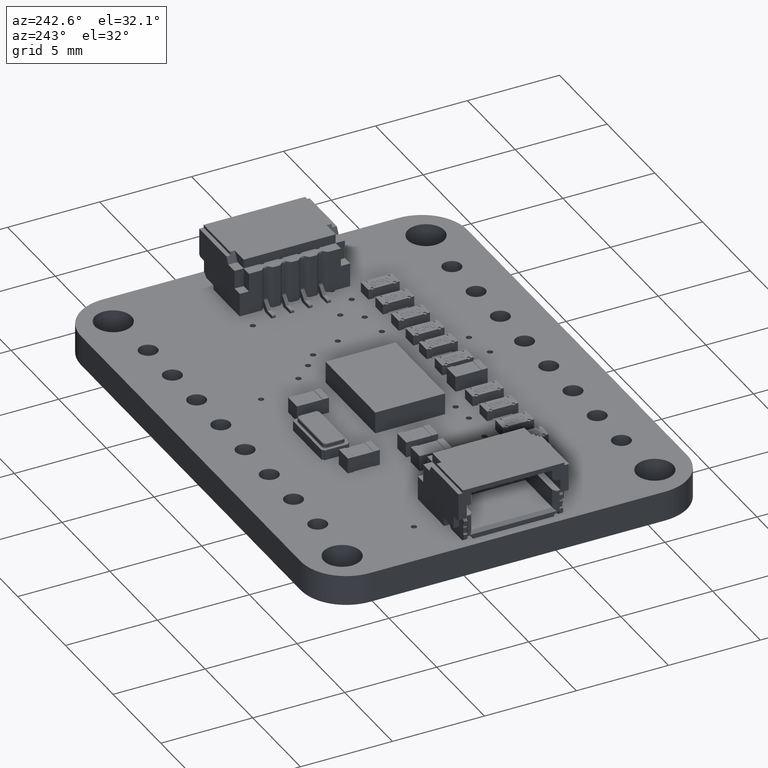
[diagram: clean part render]
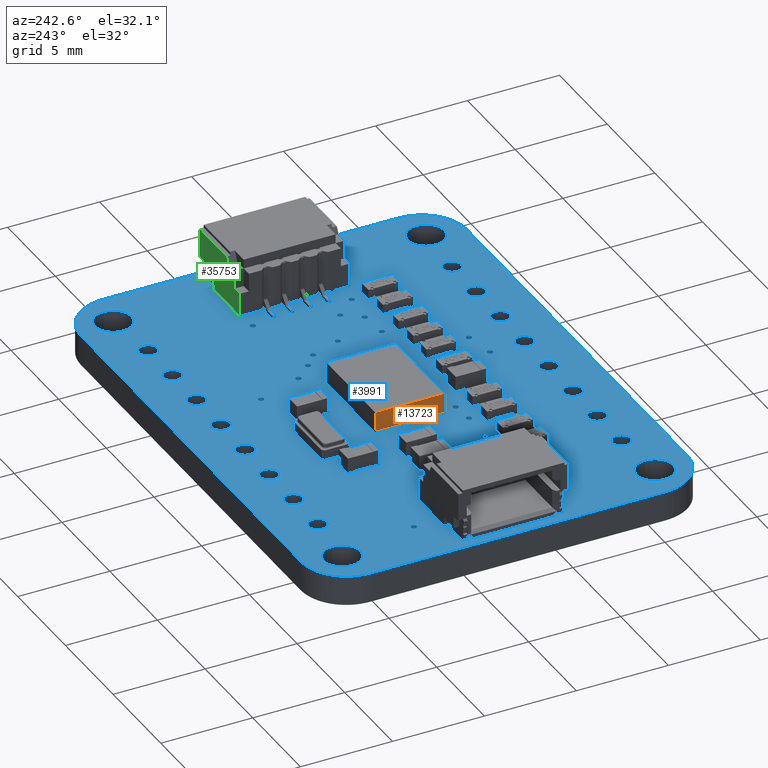
[diagram: same view with three faces highlighted in distinct colors, each labeled with its STEP entity id]
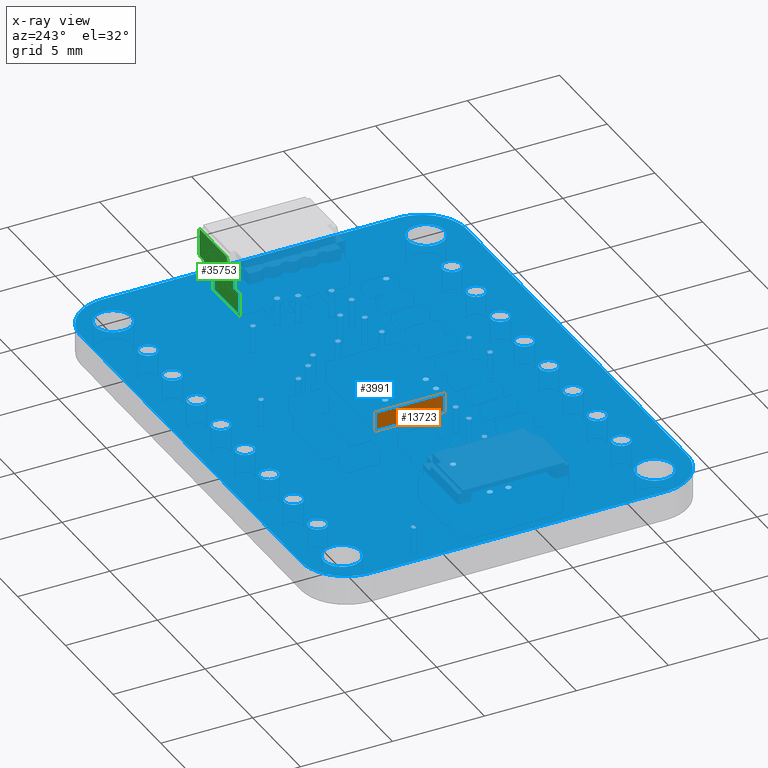
[diagram: x-ray of the same camera — body ghosted, the three highlighted faces saturated]
A machine part, auxiliary view with three faces highlighted in distinct colors.
The next image is the same camera in x-ray (body ghosted, the three faces saturated) — at least one of them is partly hidden behind the body in this view.
Their STEP definitions:

[orange] entity #13723 — the highlighted planar face has unit normal (1, 0, 0).
#13697 = VERTEX_POINT('',#13698);
#13698 = CARTESIAN_POINT('',(-2.6,0.13,-1.9));
#13704 = EDGE_CURVE('',#13705,#13697,#13707,.T.);
#13705 = VERTEX_POINT('',#13706);
#13706 = CARTESIAN_POINT('',(-2.6,1.18,-1.9));
#13707 = LINE('',#13708,#13709);
#13708 = CARTESIAN_POINT('',(-2.6,1.18,-1.9));
#13709 = VECTOR('',#13710,1.);
#13710 = DIRECTION('',(-0.,-1.,-0.));
#13723 = ADVANCED_FACE('',(#13724),#13749,.F.);
#13724 = FACE_BOUND('',#13725,.T.);
#13725 = EDGE_LOOP('',(#13726,#13734,#13742,#13748));
#13726 = ORIENTED_EDGE('',*,*,#13727,.F.);
#13727 = EDGE_CURVE('',#13728,#13697,#13730,.T.);
#13728 = VERTEX_POINT('',#13729);
#13729 = CARTESIAN_POINT('',(-2.6,0.13,1.9));
#13730 = LINE('',#13731,#13732);
#13731 = CARTESIAN_POINT('',(-2.6,0.13,1.9));
#13732 = VECTOR('',#13733,1.);
#13733 = DIRECTION('',(0.,0.,-1.));
#13734 = ORIENTED_EDGE('',*,*,#13735,.F.);
#13735 = EDGE_CURVE('',#13736,#13728,#13738,.T.);
#13736 = VERTEX_POINT('',#13737);
#13737 = CARTESIAN_POINT('',(-2.6,1.18,1.9));
#13738 = LINE('',#13739,#13740);
#13739 = CARTESIAN_POINT('',(-2.6,1.18,1.9));
#13740 = VECTOR('',#13741,1.);
#13741 = DIRECTION('',(-0.,-1.,-0.));
#13742 = ORIENTED_EDGE('',*,*,#13743,.F.);
#13743 = EDGE_CURVE('',#13705,#13736,#13744,.T.);
#13744 = LINE('',#13745,#13746);
#13745 = CARTESIAN_POINT('',(-2.6,1.18,1.9));
#13746 = VECTOR('',#13747,1.);
#13747 = DIRECTION('',(-0.,-0.,1.));
#13748 = ORIENTED_EDGE('',*,*,#13704,.T.);
#13749 = PLANE('',#13750);
#13750 = AXIS2_PLACEMENT_3D('',#13751,#13752,#13753);
#13751 = CARTESIAN_POINT('',(-2.6,1.18,1.9));
#13752 = DIRECTION('',(1.,-0.,0.));
#13753 = DIRECTION('',(0.,0.,-1.));

[blue] entity #3991 — the highlighted planar face has unit normal (0, 0, 1).
#122 = VERTEX_POINT('',#123);
#123 = CARTESIAN_POINT('',(26.5,-2.,0.82));
#129 = EDGE_CURVE('',#122,#130,#132,.T.);
#130 = VERTEX_POINT('',#131);
#131 = CARTESIAN_POINT('',(3.5,-2.,0.82));
#132 = LINE('',#133,#134);
#133 = CARTESIAN_POINT('',(26.5,-2.,0.82));
#134 = VECTOR('',#135,1.);
#135 = DIRECTION('',(-1.,0.,0.));
#162 = VERTEX_POINT('',#163);
#163 = CARTESIAN_POINT('',(26.75982,-2.01263,0.82));
#169 = EDGE_CURVE('',#162,#122,#170,.T.);
#170 = LINE('',#171,#172);
#171 = CARTESIAN_POINT('',(26.75982,-2.01263,0.82));
#172 = VECTOR('',#173,1.);
#173 = DIRECTION('',(-0.998820595701,4.855324503005E-02,0.));
#191 = EDGE_CURVE('',#130,#192,#194,.T.);
#192 = VERTEX_POINT('',#193);
#193 = CARTESIAN_POINT('',(3.24018,-2.01263,0.82));
#194 = LINE('',#195,#196);
#195 = CARTESIAN_POINT('',(3.5,-2.,0.82));
#196 = VECTOR('',#197,1.);
#197 = DIRECTION('',(-0.998820595701,-4.855324503005E-02,0.));
#224 = VERTEX_POINT('',#225);
#225 = CARTESIAN_POINT('',(27.01117,-2.04974,0.82));
#231 = EDGE_CURVE('',#224,#162,#232,.T.);
#232 = LINE('',#233,#234);
#233 = CARTESIAN_POINT('',(27.01117,-2.04974,0.82));
#234 = VECTOR('',#235,1.);
#235 = DIRECTION('',(-0.989275824391,0.146059382706,0.));
#253 = EDGE_CURVE('',#192,#254,#256,.T.);
#254 = VERTEX_POINT('',#255);
#255 = CARTESIAN_POINT('',(2.98883,-2.04974,0.82));
#256 = LINE('',#257,#258);
#257 = CARTESIAN_POINT('',(3.24018,-2.01263,0.82));
#258 = VECTOR('',#259,1.);
#259 = DIRECTION('',(-0.989275824391,-0.146059382706,0.));
#286 = VERTEX_POINT('',#287);
#287 = CARTESIAN_POINT('',(27.25291,-2.11021,0.82));
#293 = EDGE_CURVE('',#286,#224,#294,.T.);
#294 = LINE('',#295,#296);
#295 = CARTESIAN_POINT('',(27.25291,-2.11021,0.82));
#296 = VECTOR('',#297,1.);
#297 = DIRECTION('',(-0.970109442671,0.242667816656,0.));
#315 = EDGE_CURVE('',#254,#316,#318,.T.);
#316 = VERTEX_POINT('',#317);
#317 = CARTESIAN_POINT('',(2.74709,-2.11021,0.82));
#318 = LINE('',#319,#320);
#319 = CARTESIAN_POINT('',(2.98883,-2.04974,0.82));
#320 = VECTOR('',#321,1.);
#321 = DIRECTION('',(-0.970109442671,-0.242667816656,0.));
#348 = VERTEX_POINT('',#349);
#349 = CARTESIAN_POINT('',(27.48389,-2.19287,0.82));
#355 = EDGE_CURVE('',#348,#286,#356,.T.);
#356 = LINE('',#357,#358);
#357 = CARTESIAN_POINT('',(27.48389,-2.19287,0.82));
#358 = VECTOR('',#359,1.);
#359 = DIRECTION('',(-0.941525917724,0.336940567837,0.));
#377 = EDGE_CURVE('',#316,#378,#380,.T.);
#378 = VERTEX_POINT('',#379);
#379 = CARTESIAN_POINT('',(2.51611,-2.19287,0.82));
#380 = LINE('',#381,#382);
#381 = CARTESIAN_POINT('',(2.74709,-2.11021,0.82));
#382 = VECTOR('',#383,1.);
#383 = DIRECTION('',(-0.941525917724,-0.336940567837,0.));
#410 = VERTEX_POINT('',#411);
#411 = CARTESIAN_POINT('',(27.70297,-2.29659,0.82));
#417 = EDGE_CURVE('',#410,#348,#418,.T.);
#418 = LINE('',#419,#420);
#419 = CARTESIAN_POINT('',(27.70297,-2.29659,0.82));
#420 = VECTOR('',#421,1.);
#421 = DIRECTION('',(-0.903825184632,0.427901899534,0.));
#439 = EDGE_CURVE('',#378,#440,#442,.T.);
#440 = VERTEX_POINT('',#441);
#441 = CARTESIAN_POINT('',(2.29703,-2.29659,0.82));
#442 = LINE('',#443,#444);
#443 = CARTESIAN_POINT('',(2.51611,-2.19287,0.82));
#444 = VECTOR('',#445,1.);
#445 = DIRECTION('',(-0.903825184632,-0.427901899534,0.));
#472 = VERTEX_POINT('',#473);
#473 = CARTESIAN_POINT('',(27.909,-2.42023,0.82));
#479 = EDGE_CURVE('',#472,#410,#480,.T.);
#480 = LINE('',#481,#482);
#481 = CARTESIAN_POINT('',(27.909,-2.42023,0.82));
#482 = VECTOR('',#483,1.);
#483 = DIRECTION('',(-0.857452529276,0.514563076832,0.));
#501 = EDGE_CURVE('',#440,#502,#504,.T.);
#502 = VERTEX_POINT('',#503);
#503 = CARTESIAN_POINT('',(2.091,-2.42023,0.82));
#504 = LINE('',#505,#506);
#505 = CARTESIAN_POINT('',(2.29703,-2.29659,0.82));
#506 = VECTOR('',#507,1.);
#507 = DIRECTION('',(-0.857452529276,-0.514563076832,0.));
#534 = VERTEX_POINT('',#535);
#535 = CARTESIAN_POINT('',(28.10084,-2.56263,0.82));
#541 = EDGE_CURVE('',#534,#472,#542,.T.);
#542 = LINE('',#543,#544);
#543 = CARTESIAN_POINT('',(28.10084,-2.56263,0.82));
#544 = VECTOR('',#545,1.);
#545 = DIRECTION('',(-0.802963619462,0.596028041136,0.));
#563 = EDGE_CURVE('',#502,#564,#566,.T.);
#564 = VERTEX_POINT('',#565);
#565 = CARTESIAN_POINT('',(1.89916,-2.56263,0.82));
#566 = LINE('',#567,#568);
#567 = CARTESIAN_POINT('',(2.091,-2.42023,0.82));
#568 = VECTOR('',#569,1.);
#569 = DIRECTION('',(-0.802963619462,-0.596028041136,0.));
#596 = VERTEX_POINT('',#597);
#597 = CARTESIAN_POINT('',(28.27734,-2.72266,0.82));
#603 = EDGE_CURVE('',#596,#534,#604,.T.);
#604 = LINE('',#605,#606);
#605 = CARTESIAN_POINT('',(28.27734,-2.72266,0.82));
#606 = VECTOR('',#607,1.);
#607 = DIRECTION('',(-0.740826374458,0.671696570564,0.));
#625 = EDGE_CURVE('',#564,#626,#628,.T.);
#626 = VERTEX_POINT('',#627);
#627 = CARTESIAN_POINT('',(1.72266,-2.72266,0.82));
#628 = LINE('',#629,#630);
#629 = CARTESIAN_POINT('',(1.89916,-2.56263,0.82));
#630 = VECTOR('',#631,1.);
#631 = DIRECTION('',(-0.740826374458,-0.671696570564,0.));
#658 = VERTEX_POINT('',#659);
#659 = CARTESIAN_POINT('',(28.43737,-2.89916,0.82));
#665 = EDGE_CURVE('',#658,#596,#666,.T.);
#666 = LINE('',#667,#668);
#667 = CARTESIAN_POINT('',(28.43737,-2.89916,0.82));
#668 = VECTOR('',#669,1.);
#669 = DIRECTION('',(-0.671696570564,0.740826374458,0.));
#687 = EDGE_CURVE('',#626,#688,#690,.T.);
#688 = VERTEX_POINT('',#689);
#689 = CARTESIAN_POINT('',(1.56263,-2.89916,0.82));
#690 = LINE('',#691,#692);
#691 = CARTESIAN_POINT('',(1.72266,-2.72266,0.82));
#692 = VECTOR('',#693,1.);
#693 = DIRECTION('',(-0.671696570564,-0.740826374458,0.));
#720 = VERTEX_POINT('',#721);
#721 = CARTESIAN_POINT('',(28.57977,-3.091,0.82));
#727 = EDGE_CURVE('',#720,#658,#728,.T.);
#728 = LINE('',#729,#730);
#729 = CARTESIAN_POINT('',(28.57977,-3.091,0.82));
#730 = VECTOR('',#731,1.);
#731 = DIRECTION('',(-0.596028041136,0.802963619462,0.));
#749 = EDGE_CURVE('',#688,#750,#752,.T.);
#750 = VERTEX_POINT('',#751);
#751 = CARTESIAN_POINT('',(1.42023,-3.091,0.82));
#752 = LINE('',#753,#754);
#753 = CARTESIAN_POINT('',(1.56263,-2.89916,0.82));
#754 = VECTOR('',#755,1.);
#755 = DIRECTION('',(-0.596028041136,-0.802963619462,0.));
#782 = VERTEX_POINT('',#783);
#783 = CARTESIAN_POINT('',(28.70341,-3.29704,0.82));
#789 = EDGE_CURVE('',#782,#720,#790,.T.);
#790 = LINE('',#791,#792);
#791 = CARTESIAN_POINT('',(28.70341,-3.29704,0.82));
#792 = VECTOR('',#793,1.);
#793 = DIRECTION('',(-0.514544715016,0.857463548058,0.));
#811 = EDGE_CURVE('',#750,#812,#814,.T.);
#812 = VERTEX_POINT('',#813);
#813 = CARTESIAN_POINT('',(1.29659,-3.29704,0.82));
#814 = LINE('',#815,#816);
#815 = CARTESIAN_POINT('',(1.42023,-3.091,0.82));
#816 = VECTOR('',#817,1.);
#817 = DIRECTION('',(-0.514544715016,-0.857463548058,0.));
#844 = VERTEX_POINT('',#845);
#845 = CARTESIAN_POINT('',(28.80713,-3.51611,0.82));
#851 = EDGE_CURVE('',#844,#782,#852,.T.);
#852 = LINE('',#853,#854);
#853 = CARTESIAN_POINT('',(28.80713,-3.51611,0.82));
#854 = VECTOR('',#855,1.);
#855 = DIRECTION('',(-0.427917855561,0.903817630328,0.));
#873 = EDGE_CURVE('',#812,#874,#876,.T.);
#874 = VERTEX_POINT('',#875);
#875 = CARTESIAN_POINT('',(1.19287,-3.51611,0.82));
#876 = LINE('',#877,#878);
#877 = CARTESIAN_POINT('',(1.29659,-3.29704,0.82));
#878 = VECTOR('',#879,1.);
#879 = DIRECTION('',(-0.427917855561,-0.903817630328,0.));
#906 = VERTEX_POINT('',#907);
#907 = CARTESIAN_POINT('',(28.88979,-3.74709,0.82));
#913 = EDGE_CURVE('',#906,#844,#914,.T.);
#914 = LINE('',#915,#916);
#915 = CARTESIAN_POINT('',(28.88979,-3.74709,0.82));
#916 = VECTOR('',#917,1.);
#917 = DIRECTION('',(-0.336940567837,0.941525917724,0.));
#935 = EDGE_CURVE('',#874,#936,#938,.T.);
#936 = VERTEX_POINT('',#937);
#937 = CARTESIAN_POINT('',(1.11021,-3.74709,0.82));
#938 = LINE('',#939,#940);
#939 = CARTESIAN_POINT('',(1.19287,-3.51611,0.82));
#940 = VECTOR('',#941,1.);
#941 = DIRECTION('',(-0.336940567837,-0.941525917724,0.));
#968 = VERTEX_POINT('',#969);
#969 = CARTESIAN_POINT('',(28.95026,-3.98883,0.82));
#975 = EDGE_CURVE('',#968,#906,#976,.T.);
#976 = LINE('',#977,#978);
#977 = CARTESIAN_POINT('',(28.95026,-3.98883,0.82));
#978 = VECTOR('',#979,1.);
#979 = DIRECTION('',(-0.242667816656,0.970109442671,0.));
#997 = EDGE_CURVE('',#936,#998,#1000,.T.);
#998 = VERTEX_POINT('',#999);
#999 = CARTESIAN_POINT('',(1.04974,-3.98883,0.82));
#1000 = LINE('',#1001,#1002);
#1001 = CARTESIAN_POINT('',(1.11021,-3.74709,0.82));
#1002 = VECTOR('',#1003,1.);
#1003 = DIRECTION('',(-0.242667816656,-0.970109442671,0.));
#1030 = VERTEX_POINT('',#1031);
#1031 = CARTESIAN_POINT('',(28.98737,-4.24018,0.82));
#1037 = EDGE_CURVE('',#1030,#968,#1038,.T.);
#1038 = LINE('',#1039,#1040);
#1039 = CARTESIAN_POINT('',(28.98737,-4.24018,0.82));
#1040 = VECTOR('',#1041,1.);
#1041 = DIRECTION('',(-0.146059382706,0.989275824391,0.));
#1059 = EDGE_CURVE('',#998,#1060,#1062,.T.);
#1060 = VERTEX_POINT('',#1061);
#1061 = CARTESIAN_POINT('',(1.01263,-4.24018,0.82));
#1062 = LINE('',#1063,#1064);
#1063 = CARTESIAN_POINT('',(1.04974,-3.98883,0.82));
#1064 = VECTOR('',#1065,1.);
#1065 = DIRECTION('',(-0.146059382706,-0.989275824391,0.));
#1092 = VERTEX_POINT('',#1093);
#1093 = CARTESIAN_POINT('',(29.,-4.5,0.82));
#1099 = EDGE_CURVE('',#1092,#1030,#1100,.T.);
#1100 = LINE('',#1101,#1102);
#1101 = CARTESIAN_POINT('',(29.,-4.5,0.82));
#1102 = VECTOR('',#1103,1.);
#1103 = DIRECTION('',(-4.855324503005E-02,0.998820595701,0.));
#1121 = EDGE_CURVE('',#1060,#1122,#1124,.T.);
#1122 = VERTEX_POINT('',#1123);
#1123 = CARTESIAN_POINT('',(1.,-4.5,0.82));
#1124 = LINE('',#1125,#1126);
#1125 = CARTESIAN_POINT('',(1.01263,-4.24018,0.82));
#1126 = VECTOR('',#1127,1.);
#1127 = DIRECTION('',(-4.855324503005E-02,-0.998820595701,0.));
#1154 = VERTEX_POINT('',#1155);
#1155 = CARTESIAN_POINT('',(29.,-20.5,0.82));
#1161 = EDGE_CURVE('',#1154,#1092,#1162,.T.);
#1162 = LINE('',#1163,#1164);
#1163 = CARTESIAN_POINT('',(29.,-20.5,0.82));
#1164 = VECTOR('',#1165,1.);
#1165 = DIRECTION('',(0.,1.,0.));
#1183 = EDGE_CURVE('',#1122,#1184,#1186,.T.);
#1184 = VERTEX_POINT('',#1185);
#1185 = CARTESIAN_POINT('',(1.,-20.5,0.82));
#1186 = LINE('',#1187,#1188);
#1187 = CARTESIAN_POINT('',(1.,-4.5,0.82));
#1188 = VECTOR('',#1189,1.);
#1189 = DIRECTION('',(0.,-1.,0.));
#1216 = VERTEX_POINT('',#1217);
#1217 = CARTESIAN_POINT('',(28.98737,-20.75982,0.82));
#1223 = EDGE_CURVE('',#1216,#1154,#1224,.T.);
#1224 = LINE('',#1225,#1226);
#1225 = CARTESIAN_POINT('',(28.98737,-20.75982,0.82));
#1226 = VECTOR('',#1227,1.);
#1227 = DIRECTION('',(4.855324503005E-02,0.998820595701,0.));
#1245 = EDGE_CURVE('',#1184,#1246,#1248,.T.);
#1246 = VERTEX_POINT('',#1247);
#1247 = CARTESIAN_POINT('',(1.01263,-20.75982,0.82));
#1248 = LINE('',#1249,#1250);
#1249 = CARTESIAN_POINT('',(1.,-20.5,0.82));
#1250 = VECTOR('',#1251,1.);
#1251 = DIRECTION('',(4.855324503005E-02,-0.998820595701,0.));
#1278 = VERTEX_POINT('',#1279);
#1279 = CARTESIAN_POINT('',(28.95026,-21.01117,0.82));
#1285 = EDGE_CURVE('',#1278,#1216,#1286,.T.);
#1286 = LINE('',#1287,#1288);
#1287 = CARTESIAN_POINT('',(28.95026,-21.01117,0.82));
#1288 = VECTOR('',#1289,1.);
#1289 = DIRECTION('',(0.146059382706,0.989275824391,0.));
#1307 = EDGE_CURVE('',#1246,#1308,#1310,.T.);
#1308 = VERTEX_POINT('',#1309);
#1309 = CARTESIAN_POINT('',(1.04974,-21.01117,0.82));
#1310 = LINE('',#1311,#1312);
#1311 = CARTESIAN_POINT('',(1.01263,-20.75982,0.82));
#1312 = VECTOR('',#1313,1.);
#1313 = DIRECTION('',(0.146059382706,-0.989275824391,0.));
#1340 = VERTEX_POINT('',#1341);
#1341 = CARTESIAN_POINT('',(28.88979,-21.25291,0.82));
#1347 = EDGE_CURVE('',#1340,#1278,#1348,.T.);
#1348 = LINE('',#1349,#1350);
#1349 = CARTESIAN_POINT('',(28.88979,-21.25291,0.82));
#1350 = VECTOR('',#1351,1.);
#1351 = DIRECTION('',(0.242667816656,0.970109442671,0.));
#1369 = EDGE_CURVE('',#1308,#1370,#1372,.T.);
#1370 = VERTEX_POINT('',#1371);
#1371 = CARTESIAN_POINT('',(1.11021,-21.25291,0.82));
#1372 = LINE('',#1373,#1374);
#1373 = CARTESIAN_POINT('',(1.04974,-21.01117,0.82));
#1374 = VECTOR('',#1375,1.);
#1375 = DIRECTION('',(0.242667816656,-0.970109442671,0.));
#1402 = VERTEX_POINT('',#1403);
#1403 = CARTESIAN_POINT('',(28.80713,-21.48389,0.82));
#1409 = EDGE_CURVE('',#1402,#1340,#1410,.T.);
#1410 = LINE('',#1411,#1412);
#1411 = CARTESIAN_POINT('',(28.80713,-21.48389,0.82));
#1412 = VECTOR('',#1413,1.);
#1413 = DIRECTION('',(0.336940567837,0.941525917724,0.));
#1431 = EDGE_CURVE('',#1370,#1432,#1434,.T.);
#1432 = VERTEX_POINT('',#1433);
#1433 = CARTESIAN_POINT('',(1.19287,-21.48389,0.82));
#1434 = LINE('',#1435,#1436);
#1435 = CARTESIAN_POINT('',(1.11021,-21.25291,0.82));
#1436 = VECTOR('',#1437,1.);
#1437 = DIRECTION('',(0.336940567837,-0.941525917724,0.));
#1464 = VERTEX_POINT('',#1465);
#1465 = CARTESIAN_POINT('',(28.70341,-21.70296,0.82));
#1471 = EDGE_CURVE('',#1464,#1402,#1472,.T.);
#1472 = LINE('',#1473,#1474);
#1473 = CARTESIAN_POINT('',(28.70341,-21.70296,0.82));
#1474 = VECTOR('',#1475,1.);
#1475 = DIRECTION('',(0.427917855561,0.903817630328,0.));
#1493 = EDGE_CURVE('',#1432,#1494,#1496,.T.);
#1494 = VERTEX_POINT('',#1495);
#1495 = CARTESIAN_POINT('',(1.29659,-21.70296,0.82));
#1496 = LINE('',#1497,#1498);
#1497 = CARTESIAN_POINT('',(1.19287,-21.48389,0.82));
#1498 = VECTOR('',#1499,1.);
#1499 = DIRECTION('',(0.427917855561,-0.903817630328,0.));
#1526 = VERTEX_POINT('',#1527);
#1527 = CARTESIAN_POINT('',(28.57977,-21.909,0.82));
#1533 = EDGE_CURVE('',#1526,#1464,#1534,.T.);
#1534 = LINE('',#1535,#1536);
#1535 = CARTESIAN_POINT('',(28.57977,-21.909,0.82));
#1536 = VECTOR('',#1537,1.);
#1537 = DIRECTION('',(0.514544715016,0.857463548058,0.));
#1555 = EDGE_CURVE('',#1494,#1556,#1558,.T.);
#1556 = VERTEX_POINT('',#1557);
#1557 = CARTESIAN_POINT('',(1.42023,-21.909,0.82));
#1558 = LINE('',#1559,#1560);
#1559 = CARTESIAN_POINT('',(1.29659,-21.70296,0.82));
#1560 = VECTOR('',#1561,1.);
#1561 = DIRECTION('',(0.514544715016,-0.857463548058,0.));
#1588 = VERTEX_POINT('',#1589);
#1589 = CARTESIAN_POINT('',(28.43737,-22.10084,0.82));
#1595 = EDGE_CURVE('',#1588,#1526,#1596,.T.);
#1596 = LINE('',#1597,#1598);
#1597 = CARTESIAN_POINT('',(28.43737,-22.10084,0.82));
#1598 = VECTOR('',#1599,1.);
#1599 = DIRECTION('',(0.596028041136,0.802963619462,0.));
#1617 = EDGE_CURVE('',#1556,#1618,#1620,.T.);
#1618 = VERTEX_POINT('',#1619);
#1619 = CARTESIAN_POINT('',(1.56263,-22.10084,0.82));
#1620 = LINE('',#1621,#1622);
#1621 = CARTESIAN_POINT('',(1.42023,-21.909,0.82));
#1622 = VECTOR('',#1623,1.);
#1623 = DIRECTION('',(0.596028041136,-0.802963619462,0.));
#1650 = VERTEX_POINT('',#1651);
#1651 = CARTESIAN_POINT('',(28.27734,-22.27734,0.82));
#1657 = EDGE_CURVE('',#1650,#1588,#1658,.T.);
#1658 = LINE('',#1659,#1660);
#1659 = CARTESIAN_POINT('',(28.27734,-22.27734,0.82));
#1660 = VECTOR('',#1661,1.);
#1661 = DIRECTION('',(0.671696570564,0.740826374458,0.));
#1679 = EDGE_CURVE('',#1618,#1680,#1682,.T.);
#1680 = VERTEX_POINT('',#1681);
#1681 = CARTESIAN_POINT('',(1.72266,-22.27734,0.82));
#1682 = LINE('',#1683,#1684);
#1683 = CARTESIAN_POINT('',(1.56263,-22.10084,0.82));
#1684 = VECTOR('',#1685,1.);
#1685 = DIRECTION('',(0.671696570564,-0.740826374458,0.));
#1712 = VERTEX_POINT('',#1713);
#1713 = CARTESIAN_POINT('',(28.10084,-22.43737,0.82));
#1719 = EDGE_CURVE('',#1712,#1650,#1720,.T.);
#1720 = LINE('',#1721,#1722);
#1721 = CARTESIAN_POINT('',(28.10084,-22.43737,0.82));
#1722 = VECTOR('',#1723,1.);
#1723 = DIRECTION('',(0.740826374458,0.671696570564,0.));
#1741 = EDGE_CURVE('',#1680,#1742,#1744,.T.);
#1742 = VERTEX_POINT('',#1743);
#1743 = CARTESIAN_POINT('',(1.89916,-22.43737,0.82));
#1744 = LINE('',#1745,#1746);
#1745 = CARTESIAN_POINT('',(1.72266,-22.27734,0.82));
#1746 = VECTOR('',#1747,1.);
#1747 = DIRECTION('',(0.740826374458,-0.671696570564,0.));
#1774 = VERTEX_POINT('',#1775);
#1775 = CARTESIAN_POINT('',(27.909,-22.57977,0.82));
#1781 = EDGE_CURVE('',#1774,#1712,#1782,.T.);
#1782 = LINE('',#1783,#1784);
#1783 = CARTESIAN_POINT('',(27.909,-22.57977,0.82));
#1784 = VECTOR('',#1785,1.);
#1785 = DIRECTION('',(0.802963619462,0.596028041136,0.));
#1803 = EDGE_CURVE('',#1742,#1804,#1806,.T.);
#1804 = VERTEX_POINT('',#1805);
#1805 = CARTESIAN_POINT('',(2.091,-22.57977,0.82));
#1806 = LINE('',#1807,#1808);
#1807 = CARTESIAN_POINT('',(1.89916,-22.43737,0.82));
#1808 = VECTOR('',#1809,1.);
#1809 = DIRECTION('',(0.802963619462,-0.596028041136,0.));
#1836 = VERTEX_POINT('',#1837);
#1837 = CARTESIAN_POINT('',(27.70297,-22.70341,0.82));
#1843 = EDGE_CURVE('',#1836,#1774,#1844,.T.);
#1844 = LINE('',#1845,#1846);
#1845 = CARTESIAN_POINT('',(27.70297,-22.70341,0.82));
#1846 = VECTOR('',#1847,1.);
#1847 = DIRECTION('',(0.857452529276,0.514563076832,0.));
#1865 = EDGE_CURVE('',#1804,#1866,#1868,.T.);
#1866 = VERTEX_POINT('',#1867);
#1867 = CARTESIAN_POINT('',(2.29703,-22.70341,0.82));
#1868 = LINE('',#1869,#1870);
#1869 = CARTESIAN_POINT('',(2.091,-22.57977,0.82));
#1870 = VECTOR('',#1871,1.);
#1871 = DIRECTION('',(0.857452529276,-0.514563076832,0.));
#1898 = VERTEX_POINT('',#1899);
#1899 = CARTESIAN_POINT('',(27.48389,-22.80713,0.82));
#1905 = EDGE_CURVE('',#1898,#1836,#1906,.T.);
#1906 = LINE('',#1907,#1908);
#1907 = CARTESIAN_POINT('',(27.48389,-22.80713,0.82));
#1908 = VECTOR('',#1909,1.);
#1909 = DIRECTION('',(0.903825184632,0.427901899534,0.));
#1927 = EDGE_CURVE('',#1866,#1928,#1930,.T.);
#1928 = VERTEX_POINT('',#1929);
#1929 = CARTESIAN_POINT('',(2.51611,-22.80713,0.82));
#1930 = LINE('',#1931,#1932);
#1931 = CARTESIAN_POINT('',(2.29703,-22.70341,0.82));
#1932 = VECTOR('',#1933,1.);
#1933 = DIRECTION('',(0.903825184632,-0.427901899534,0.));
#1960 = VERTEX_POINT('',#1961);
#1961 = CARTESIAN_POINT('',(27.25291,-22.88979,0.82));
#1967 = EDGE_CURVE('',#1960,#1898,#1968,.T.);
#1968 = LINE('',#1969,#1970);
#1969 = CARTESIAN_POINT('',(27.25291,-22.88979,0.82));
#1970 = VECTOR('',#1971,1.);
#1971 = DIRECTION('',(0.941525917724,0.336940567837,0.));
#1989 = EDGE_CURVE('',#1928,#1990,#1992,.T.);
#1990 = VERTEX_POINT('',#1991);
#1991 = CARTESIAN_POINT('',(2.74709,-22.88979,0.82));
#1992 = LINE('',#1993,#1994);
#1993 = CARTESIAN_POINT('',(2.51611,-22.80713,0.82));
#1994 = VECTOR('',#1995,1.);
#1995 = DIRECTION('',(0.941525917724,-0.336940567837,0.));
#2022 = VERTEX_POINT('',#2023);
#2023 = CARTESIAN_POINT('',(27.01117,-22.95026,0.82));
#2029 = EDGE_CURVE('',#2022,#1960,#2030,.T.);
#2030 = LINE('',#2031,#2032);
#2031 = CARTESIAN_POINT('',(27.01117,-22.95026,0.82));
#2032 = VECTOR('',#2033,1.);
#2033 = DIRECTION('',(0.970109442671,0.242667816656,0.));
#2051 = EDGE_CURVE('',#1990,#2052,#2054,.T.);
#2052 = VERTEX_POINT('',#2053);
#2053 = CARTESIAN_POINT('',(2.98883,-22.95026,0.82));
#2054 = LINE('',#2055,#2056);
#2055 = CARTESIAN_POINT('',(2.74709,-22.88979,0.82));
#2056 = VECTOR('',#2057,1.);
#2057 = DIRECTION('',(0.970109442671,-0.242667816656,0.));
#2084 = VERTEX_POINT('',#2085);
#2085 = CARTESIAN_POINT('',(26.75982,-22.98737,0.82));
#2091 = EDGE_CURVE('',#2084,#2022,#2092,.T.);
#2092 = LINE('',#2093,#2094);
#2093 = CARTESIAN_POINT('',(26.75982,-22.98737,0.82));
#2094 = VECTOR('',#2095,1.);
#2095 = DIRECTION('',(0.989275824391,0.146059382706,0.));
#2113 = EDGE_CURVE('',#2052,#2114,#2116,.T.);
#2114 = VERTEX_POINT('',#2115);
#2115 = CARTESIAN_POINT('',(3.24018,-22.98737,0.82));
#2116 = LINE('',#2117,#2118);
#2117 = CARTESIAN_POINT('',(2.98883,-22.95026,0.82));
#2118 = VECTOR('',#2119,1.);
#2119 = DIRECTION('',(0.989275824391,-0.146059382706,0.));
#2146 = VERTEX_POINT('',#2147);
#2147 = CARTESIAN_POINT('',(26.5,-23.,0.82));
#2153 = EDGE_CURVE('',#2146,#2084,#2154,.T.);
#2154 = LINE('',#2155,#2156);
#2155 = CARTESIAN_POINT('',(26.5,-23.,0.82));
#2156 = VECTOR('',#2157,1.);
#2157 = DIRECTION('',(0.998820595701,4.855324503005E-02,0.));
#2175 = EDGE_CURVE('',#2114,#2176,#2178,.T.);
#2176 = VERTEX_POINT('',#2177);
#2177 = CARTESIAN_POINT('',(3.5,-23.,0.82));
#2178 = LINE('',#2179,#2180);
#2179 = CARTESIAN_POINT('',(3.24018,-22.98737,0.82));
#2180 = VECTOR('',#2181,1.);
#2181 = DIRECTION('',(0.998820595701,-4.855324503005E-02,0.));
#2206 = EDGE_CURVE('',#2176,#2146,#2207,.T.);
#2207 = LINE('',#2208,#2209);
#2208 = CARTESIAN_POINT('',(3.5,-23.,0.82));
#2209 = VECTOR('',#2210,1.);
#2210 = DIRECTION('',(1.,0.,0.));
#2230 = VERTEX_POINT('',#2231);
#2231 = CARTESIAN_POINT('',(4.,-21.,0.82));
#2237 = EDGE_CURVE('',#2230,#2230,#2238,.T.);
#2238 = CIRCLE('',#2239,1.);
#2239 = AXIS2_PLACEMENT_3D('',#2240,#2241,#2242);
#2240 = CARTESIAN_POINT('',(3.,-21.,0.82));
#2241 = DIRECTION('',(0.,0.,1.));
#2242 = DIRECTION('',(1.,0.,-0.));
#2263 = VERTEX_POINT('',#2264);
#2264 = CARTESIAN_POINT('',(6.618,-20.796,0.82));
#2270 = EDGE_CURVE('',#2263,#2263,#2271,.T.);
#2271 = CIRCLE('',#2272,0.508);
#2272 = AXIS2_PLACEMENT_3D('',#2273,#2274,#2275);
#2273 = CARTESIAN_POINT('',(6.11,-20.796,0.82));
#2274 = DIRECTION('',(0.,0.,1.));
#2275 = DIRECTION('',(1.,0.,-0.));
#2296 = VERTEX_POINT('',#2297);
#2297 = CARTESIAN_POINT('',(9.158,-20.796,0.82));
#2303 = EDGE_CURVE('',#2296,#2296,#2304,.T.);
#2304 = CIRCLE('',#2305,0.508);
#2305 = AXIS2_PLACEMENT_3D('',#2306,#2307,#2308);
#2306 = CARTESIAN_POINT('',(8.65,-20.796,0.82));
#2307 = DIRECTION('',(0.,0.,1.));
#2308 = DIRECTION('',(1.,0.,-0.));
#2329 = VERTEX_POINT('',#2330);
#2330 = CARTESIAN_POINT('',(11.698,-20.796,0.82));
#2336 = EDGE_CURVE('',#2329,#2329,#2337,.T.);
#2337 = CIRCLE('',#2338,0.508);
#2338 = AXIS2_PLACEMENT_3D('',#2339,#2340,#2341);
#2339 = CARTESIAN_POINT('',(11.19,-20.796,0.82));
#2340 = DIRECTION('',(0.,0.,1.));
#2341 = DIRECTION('',(1.,0.,-0.));
#2362 = VERTEX_POINT('',#2363);
#2363 = CARTESIAN_POINT('',(14.238,-20.796,0.82));
#2369 = EDGE_CURVE('',#2362,#2362,#2370,.T.);
#2370 = CIRCLE('',#2371,0.508);
#2371 = AXIS2_PLACEMENT_3D('',#2372,#2373,#2374);
#2372 = CARTESIAN_POINT('',(13.73,-20.796,0.82));
#2373 = DIRECTION('',(0.,0.,1.));
#2374 = DIRECTION('',(1.,0.,-0.));
#2395 = VERTEX_POINT('',#2396);
#2396 = CARTESIAN_POINT('',(4.97146,-13.9858,0.82));
#2402 = EDGE_CURVE('',#2395,#2395,#2403,.T.);
#2403 = CIRCLE('',#2404,0.15);
#2404 = AXIS2_PLACEMENT_3D('',#2405,#2406,#2407);
#2405 = CARTESIAN_POINT('',(4.82146,-13.9858,0.82));
#2406 = DIRECTION('',(0.,0.,1.));
#2407 = DIRECTION('',(1.,0.,-0.));
#2428 = VERTEX_POINT('',#2429);
#2429 = CARTESIAN_POINT('',(5.03105,-13.00952,0.82));
#2435 = EDGE_CURVE('',#2428,#2428,#2436,.T.);
#2436 = CIRCLE('',#2437,0.15);
#2437 = AXIS2_PLACEMENT_3D('',#2438,#2439,#2440);
#2438 = CARTESIAN_POINT('',(4.88105,-13.00952,0.82));
#2439 = DIRECTION('',(0.,0.,1.));
#2440 = DIRECTION('',(1.,0.,-0.));
#2461 = VERTEX_POINT('',#2462);
#2462 = CARTESIAN_POINT('',(8.07553,-12.58886,0.82));
#2468 = EDGE_CURVE('',#2461,#2461,#2469,.T.);
#2469 = CIRCLE('',#2470,0.15);
#2470 = AXIS2_PLACEMENT_3D('',#2471,#2472,#2473);
#2471 = CARTESIAN_POINT('',(7.92553,-12.58886,0.82));
#2472 = DIRECTION('',(0.,0.,1.));
#2473 = DIRECTION('',(1.,0.,-0.));
#2494 = VERTEX_POINT('',#2495);
#2495 = CARTESIAN_POINT('',(9.63392,-15.09957,0.82));
#2501 = EDGE_CURVE('',#2494,#2494,#2502,.T.);
#2502 = CIRCLE('',#2503,0.15);
#2503 = AXIS2_PLACEMENT_3D('',#2504,#2505,#2506);
#2504 = CARTESIAN_POINT('',(9.48392,-15.09957,0.82));
#2505 = DIRECTION('',(0.,0.,1.));
#2506 = DIRECTION('',(1.,0.,-0.));
#2527 = VERTEX_POINT('',#2528);
#2528 = CARTESIAN_POINT('',(11.44695,-15.19356,0.82));
#2534 = EDGE_CURVE('',#2527,#2527,#2535,.T.);
#2535 = CIRCLE('',#2536,0.15);
#2536 = AXIS2_PLACEMENT_3D('',#2537,#2538,#2539);
#2537 = CARTESIAN_POINT('',(11.29695,-15.19356,0.82));
#2538 = DIRECTION('',(0.,0.,1.));
#2539 = DIRECTION('',(1.,0.,-0.));
#2560 = VERTEX_POINT('',#2561);
#2561 = CARTESIAN_POINT('',(12.646,-15.0964,0.82));
#2567 = EDGE_CURVE('',#2560,#2560,#2568,.T.);
#2568 = CIRCLE('',#2569,0.15);
#2569 = AXIS2_PLACEMENT_3D('',#2570,#2571,#2572);
#2570 = CARTESIAN_POINT('',(12.496,-15.0964,0.82));
#2571 = DIRECTION('',(0.,0.,1.));
#2572 = DIRECTION('',(1.,0.,-0.));
#2593 = VERTEX_POINT('',#2594);
#2594 = CARTESIAN_POINT('',(14.56039,-15.0246,0.82));
#2600 = EDGE_CURVE('',#2593,#2593,#2601,.T.);
#2601 = CIRCLE('',#2602,0.15);
#2602 = AXIS2_PLACEMENT_3D('',#2603,#2604,#2605);
#2603 = CARTESIAN_POINT('',(14.41039,-15.0246,0.82));
#2604 = DIRECTION('',(0.,0.,1.));
#2605 = DIRECTION('',(1.,0.,-0.));
#2626 = VERTEX_POINT('',#2627);
#2627 = CARTESIAN_POINT('',(16.778,-20.796,0.82));
#2633 = EDGE_CURVE('',#2626,#2626,#2634,.T.);
#2634 = CIRCLE('',#2635,0.508);
#2635 = AXIS2_PLACEMENT_3D('',#2636,#2637,#2638);
#2636 = CARTESIAN_POINT('',(16.27,-20.796,0.82));
#2637 = DIRECTION('',(0.,0.,1.));
#2638 = DIRECTION('',(1.,0.,-0.));
#2659 = VERTEX_POINT('',#2660);
#2660 = CARTESIAN_POINT('',(19.318,-20.796,0.82));
#2666 = EDGE_CURVE('',#2659,#2659,#2667,.T.);
#2667 = CIRCLE('',#2668,0.508);
#2668 = AXIS2_PLACEMENT_3D('',#2669,#2670,#2671);
#2669 = CARTESIAN_POINT('',(18.81,-20.796,0.82));
#2670 = DIRECTION('',(0.,0.,1.));
#2671 = DIRECTION('',(1.,0.,-0.));
#2692 = VERTEX_POINT('',#2693);
#2693 = CARTESIAN_POINT('',(21.858,-20.796,0.82));
#2699 = EDGE_CURVE('',#2692,#2692,#2700,.T.);
#2700 = CIRCLE('',#2701,0.508);
#2701 = AXIS2_PLACEMENT_3D('',#2702,#2703,#2704);
#2702 = CARTESIAN_POINT('',(21.35,-20.796,0.82));
#2703 = DIRECTION('',(0.,0.,1.));
#2704 = DIRECTION('',(1.,0.,-0.));
#2725 = VERTEX_POINT('',#2726);
#2726 = CARTESIAN_POINT('',(16.3101,-18.86739,0.82));
#2732 = EDGE_CURVE('',#2725,#2725,#2733,.T.);
#2733 = CIRCLE('',#2734,0.15);
#2734 = AXIS2_PLACEMENT_3D('',#2735,#2736,#2737);
#2735 = CARTESIAN_POINT('',(16.1601,-18.86739,0.82));
#2736 = DIRECTION('',(0.,0.,1.));
#2737 = DIRECTION('',(1.,0.,-0.));
#2758 = VERTEX_POINT('',#2759);
#2759 = CARTESIAN_POINT('',(17.95091,-18.56536,0.82));
#2765 = EDGE_CURVE('',#2758,#2758,#2766,.T.);
#2766 = CIRCLE('',#2767,0.15);
#2767 = AXIS2_PLACEMENT_3D('',#2768,#2769,#2770);
#2768 = CARTESIAN_POINT('',(17.80091,-18.56536,0.82));
#2769 = DIRECTION('',(0.,0.,1.));
#2770 = DIRECTION('',(1.,0.,-0.));
#2791 = VERTEX_POINT('',#2792);
#2792 = CARTESIAN_POINT('',(24.398,-20.796,0.82));
#2798 = EDGE_CURVE('',#2791,#2791,#2799,.T.);
#2799 = CIRCLE('',#2800,0.508);
#2800 = AXIS2_PLACEMENT_3D('',#2801,#2802,#2803);
#2801 = CARTESIAN_POINT('',(23.89,-20.796,0.82));
#2802 = DIRECTION('',(0.,0.,1.));
#2803 = DIRECTION('',(1.,0.,-0.));
#2824 = VERTEX_POINT('',#2825);
#2825 = CARTESIAN_POINT('',(28.,-21.,0.82));
#2831 = EDGE_CURVE('',#2824,#2824,#2832,.T.);
#2832 = CIRCLE('',#2833,1.);
#2833 = AXIS2_PLACEMENT_3D('',#2834,#2835,#2836);
#2834 = CARTESIAN_POINT('',(27.,-21.,0.82));
#2835 = DIRECTION('',(0.,0.,1.));
#2836 = DIRECTION('',(1.,0.,-0.));
#2857 = VERTEX_POINT('',#2858);
#2858 = CARTESIAN_POINT('',(24.526,-17.477,0.82));
#2864 = EDGE_CURVE('',#2857,#2857,#2865,.T.);
#2865 = CIRCLE('',#2866,0.15);
#2866 = AXIS2_PLACEMENT_3D('',#2867,#2868,#2869);
#2867 = CARTESIAN_POINT('',(24.376,-17.477,0.82));
#2868 = DIRECTION('',(0.,0.,1.));
#2869 = DIRECTION('',(1.,0.,-0.));
#2890 = VERTEX_POINT('',#2891);
#2891 = CARTESIAN_POINT('',(15.5345,-14.9713,0.82));
#2897 = EDGE_CURVE('',#2890,#2890,#2898,.T.);
#2898 = CIRCLE('',#2899,0.15);
#2899 = AXIS2_PLACEMENT_3D('',#2900,#2901,#2902);
#2900 = CARTESIAN_POINT('',(15.3845,-14.9713,0.82));
#2901 = DIRECTION('',(0.,0.,1.));
#2902 = DIRECTION('',(1.,0.,-0.));
#2923 = VERTEX_POINT('',#2924);
#2924 = CARTESIAN_POINT('',(20.36119,-15.08269,0.82));
#2930 = EDGE_CURVE('',#2923,#2923,#2931,.T.);
#2931 = CIRCLE('',#2932,0.15);
#2932 = AXIS2_PLACEMENT_3D('',#2933,#2934,#2935);
#2933 = CARTESIAN_POINT('',(20.21119,-15.08269,0.82));
#2934 = DIRECTION('',(0.,0.,1.));
#2935 = DIRECTION('',(1.,0.,-0.));
#2956 = VERTEX_POINT('',#2957);
#2957 = CARTESIAN_POINT('',(20.56998,-12.7975,0.82));
#2963 = EDGE_CURVE('',#2956,#2956,#2964,.T.);
#2964 = CIRCLE('',#2965,0.15);
#2965 = AXIS2_PLACEMENT_3D('',#2966,#2967,#2968);
#2966 = CARTESIAN_POINT('',(20.41998,-12.7975,0.82));
#2967 = DIRECTION('',(0.,0.,1.));
#2968 = DIRECTION('',(1.,0.,-0.));
#2989 = VERTEX_POINT('',#2990);
#2990 = CARTESIAN_POINT('',(21.90373,-14.95207,0.82));
#2996 = EDGE_CURVE('',#2989,#2989,#2997,.T.);
#2997 = CIRCLE('',#2998,0.15);
#2998 = AXIS2_PLACEMENT_3D('',#2999,#3000,#3001);
#2999 = CARTESIAN_POINT('',(21.75373,-14.95207,0.82));
#3000 = DIRECTION('',(0.,0.,1.));
#3001 = DIRECTION('',(1.,0.,-0.));
#3022 = VERTEX_POINT('',#3023);
#3023 = CARTESIAN_POINT('',(23.61854,-15.13121,0.82));
#3029 = EDGE_CURVE('',#3022,#3022,#3030,.T.);
#3030 = CIRCLE('',#3031,0.15);
#3031 = AXIS2_PLACEMENT_3D('',#3032,#3033,#3034);
#3032 = CARTESIAN_POINT('',(23.46854,-15.13121,0.82));
#3033 = DIRECTION('',(0.,0.,1.));
#3034 = DIRECTION('',(1.,0.,-0.));
#3055 = VERTEX_POINT('',#3056);
#3056 = CARTESIAN_POINT('',(22.613,-13.9888,0.82));
#3062 = EDGE_CURVE('',#3055,#3055,#3063,.T.);
#3063 = CIRCLE('',#3064,0.15);
#3064 = AXIS2_PLACEMENT_3D('',#3065,#3066,#3067);
#3065 = CARTESIAN_POINT('',(22.463,-13.9888,0.82));
#3066 = DIRECTION('',(0.,0.,1.));
#3067 = DIRECTION('',(1.,0.,-0.));
#3088 = VERTEX_POINT('',#3089);
#3089 = CARTESIAN_POINT('',(24.77655,-14.64407,0.82));
#3095 = EDGE_CURVE('',#3088,#3088,#3096,.T.);
#3096 = CIRCLE('',#3097,0.15);
#3097 = AXIS2_PLACEMENT_3D('',#3098,#3099,#3100);
#3098 = CARTESIAN_POINT('',(24.62655,-14.64407,0.82));
#3099 = DIRECTION('',(0.,0.,1.));
#3100 = DIRECTION('',(1.,0.,-0.));
#3121 = VERTEX_POINT('',#3122);
#3122 = CARTESIAN_POINT('',(25.11983,-13.00371,0.82));
#3128 = EDGE_CURVE('',#3121,#3121,#3129,.T.);
#3129 = CIRCLE('',#3130,0.15);
#3130 = AXIS2_PLACEMENT_3D('',#3131,#3132,#3133);
#3131 = CARTESIAN_POINT('',(24.96983,-13.00371,0.82));
#3132 = DIRECTION('',(0.,0.,1.));
#3133 = DIRECTION('',(1.,0.,-0.));
#3154 = VERTEX_POINT('',#3155);
#3155 = CARTESIAN_POINT('',(3.90575,-8.29538,0.82));
#3161 = EDGE_CURVE('',#3154,#3154,#3162,.T.);
#3162 = CIRCLE('',#3163,0.15);
#3163 = AXIS2_PLACEMENT_3D('',#3164,#3165,#3166);
#3164 = CARTESIAN_POINT('',(3.75575,-8.29538,0.82));
#3165 = DIRECTION('',(0.,0.,1.));
#3166 = DIRECTION('',(1.,0.,-0.));
#3187 = VERTEX_POINT('',#3188);
#3188 = CARTESIAN_POINT('',(14.7644,-12.3632,0.82));
#3194 = EDGE_CURVE('',#3187,#3187,#3195,.T.);
#3195 = CIRCLE('',#3196,0.15);
#3196 = AXIS2_PLACEMENT_3D('',#3197,#3198,#3199);
#3197 = CARTESIAN_POINT('',(14.6144,-12.3632,0.82));
#3198 = DIRECTION('',(0.,0.,1.));
#3199 = DIRECTION('',(1.,0.,-0.));
#3220 = VERTEX_POINT('',#3221);
#3221 = CARTESIAN_POINT('',(4.,-4.,0.82));
#3227 = EDGE_CURVE('',#3220,#3220,#3228,.T.);
#3228 = CIRCLE('',#3229,1.);
#3229 = AXIS2_PLACEMENT_3D('',#3230,#3231,#3232);
#3230 = CARTESIAN_POINT('',(3.,-4.,0.82));
#3231 = DIRECTION('',(0.,0.,1.));
#3232 = DIRECTION('',(1.,0.,-0.));
#3253 = VERTEX_POINT('',#3254);
#3254 = CARTESIAN_POINT('',(6.618,-4.286,0.82));
#3260 = EDGE_CURVE('',#3253,#3253,#3261,.T.);
#3261 = CIRCLE('',#3262,0.508);
#3262 = AXIS2_PLACEMENT_3D('',#3263,#3264,#3265);
#3263 = CARTESIAN_POINT('',(6.11,-4.286,0.82));
#3264 = DIRECTION('',(0.,0.,1.));
#3265 = DIRECTION('',(1.,0.,-0.));
#3286 = VERTEX_POINT('',#3287);
#3287 = CARTESIAN_POINT('',(9.158,-4.286,0.82));
#3293 = EDGE_CURVE('',#3286,#3286,#3294,.T.);
#3294 = CIRCLE('',#3295,0.508);
#3295 = AXIS2_PLACEMENT_3D('',#3296,#3297,#3298);
#3296 = CARTESIAN_POINT('',(8.65,-4.286,0.82));
#3297 = DIRECTION('',(0.,0.,1.));
#3298 = DIRECTION('',(1.,0.,-0.));
#3319 = VERTEX_POINT('',#3320);
#3320 = CARTESIAN_POINT('',(11.698,-4.286,0.82));
#3326 = EDGE_CURVE('',#3319,#3319,#3327,.T.);
#3327 = CIRCLE('',#3328,0.508);
#3328 = AXIS2_PLACEMENT_3D('',#3329,#3330,#3331);
#3329 = CARTESIAN_POINT('',(11.19,-4.286,0.82));
#3330 = DIRECTION('',(0.,0.,1.));
#3331 = DIRECTION('',(1.,0.,-0.));
#3352 = VERTEX_POINT('',#3353);
#3353 = CARTESIAN_POINT('',(14.238,-4.286,0.82));
#3359 = EDGE_CURVE('',#3352,#3352,#3360,.T.);
#3360 = CIRCLE('',#3361,0.508);
#3361 = AXIS2_PLACEMENT_3D('',#3362,#3363,#3364);
#3362 = CARTESIAN_POINT('',(13.73,-4.286,0.82));
#3363 = DIRECTION('',(0.,0.,1.));
#3364 = DIRECTION('',(1.,0.,-0.));
#3385 = VERTEX_POINT('',#3386);
#3386 = CARTESIAN_POINT('',(16.3037,-12.35151,0.82));
#3392 = EDGE_CURVE('',#3385,#3385,#3393,.T.);
#3393 = CIRCLE('',#3394,0.15);
#3394 = AXIS2_PLACEMENT_3D('',#3395,#3396,#3397);
#3395 = CARTESIAN_POINT('',(16.1537,-12.35151,0.82));
#3396 = DIRECTION('',(0.,0.,1.));
#3397 = DIRECTION('',(1.,0.,-0.));
#3418 = VERTEX_POINT('',#3419);
#3419 = CARTESIAN_POINT('',(20.0026,-11.15773,0.82));
#3425 = EDGE_CURVE('',#3418,#3418,#3426,.T.);
#3426 = CIRCLE('',#3427,0.15);
#3427 = AXIS2_PLACEMENT_3D('',#3428,#3429,#3430);
#3428 = CARTESIAN_POINT('',(19.8526,-11.15773,0.82));
#3429 = DIRECTION('',(0.,0.,1.));
#3430 = DIRECTION('',(1.,0.,-0.));
#3451 = VERTEX_POINT('',#3452);
#3452 = CARTESIAN_POINT('',(19.25755,-10.49877,0.82));
#3458 = EDGE_CURVE('',#3451,#3451,#3459,.T.);
#3459 = CIRCLE('',#3460,0.15);
#3460 = AXIS2_PLACEMENT_3D('',#3461,#3462,#3463);
#3461 = CARTESIAN_POINT('',(19.10755,-10.49877,0.82));
#3462 = DIRECTION('',(0.,0.,1.));
#3463 = DIRECTION('',(1.,0.,-0.));
#3484 = VERTEX_POINT('',#3485);
#3485 = CARTESIAN_POINT('',(18.422,-9.5438,0.82));
#3491 = EDGE_CURVE('',#3484,#3484,#3492,.T.);
#3492 = CIRCLE('',#3493,0.15);
#3493 = AXIS2_PLACEMENT_3D('',#3494,#3495,#3496);
#3494 = CARTESIAN_POINT('',(18.272,-9.5438,0.82));
#3495 = DIRECTION('',(0.,0.,1.));
#3496 = DIRECTION('',(1.,0.,-0.));
#3517 = VERTEX_POINT('',#3518);
#3518 = CARTESIAN_POINT('',(25.36336,-11.98674,0.82));
#3524 = EDGE_CURVE('',#3517,#3517,#3525,.T.);
#3525 = CIRCLE('',#3526,0.15);
#3526 = AXIS2_PLACEMENT_3D('',#3527,#3528,#3529);
#3527 = CARTESIAN_POINT('',(25.21336,-11.98674,0.82));
#3528 = DIRECTION('',(0.,0.,1.));
#3529 = DIRECTION('',(1.,0.,-0.));
#3550 = VERTEX_POINT('',#3551);
#3551 = CARTESIAN_POINT('',(23.69904,-9.80321,0.82));
#3557 = EDGE_CURVE('',#3550,#3550,#3558,.T.);
#3558 = CIRCLE('',#3559,0.15);
#3559 = AXIS2_PLACEMENT_3D('',#3560,#3561,#3562);
#3560 = CARTESIAN_POINT('',(23.54904,-9.80321,0.82));
#3561 = DIRECTION('',(0.,0.,1.));
#3562 = DIRECTION('',(1.,0.,-0.));
#3583 = VERTEX_POINT('',#3584);
#3584 = CARTESIAN_POINT('',(17.58191,-7.07797,0.82));
#3590 = EDGE_CURVE('',#3583,#3583,#3591,.T.);
#3591 = CIRCLE('',#3592,0.15);
#3592 = AXIS2_PLACEMENT_3D('',#3593,#3594,#3595);
#3593 = CARTESIAN_POINT('',(17.43191,-7.07797,0.82));
#3594 = DIRECTION('',(0.,0.,1.));
#3595 = DIRECTION('',(1.,0.,-0.));
#3616 = VERTEX_POINT('',#3617);
#3617 = CARTESIAN_POINT('',(16.778,-4.286,0.82));
#3623 = EDGE_CURVE('',#3616,#3616,#3624,.T.);
#3624 = CIRCLE('',#3625,0.508);
#3625 = AXIS2_PLACEMENT_3D('',#3626,#3627,#3628);
#3626 = CARTESIAN_POINT('',(16.27,-4.286,0.82));
#3627 = DIRECTION('',(0.,0.,1.));
#3628 = DIRECTION('',(1.,0.,-0.));
#3649 = VERTEX_POINT('',#3650);
#3650 = CARTESIAN_POINT('',(19.318,-4.286,0.82));
#3656 = EDGE_CURVE('',#3649,#3649,#3657,.T.);
#3657 = CIRCLE('',#3658,0.508);
#3658 = AXIS2_PLACEMENT_3D('',#3659,#3660,#3661);
#3659 = CARTESIAN_POINT('',(18.81,-4.286,0.82));
#3660 = DIRECTION('',(0.,0.,1.));
#3661 = DIRECTION('',(1.,0.,-0.));
#3682 = VERTEX_POINT('',#3683);
#3683 = CARTESIAN_POINT('',(21.858,-4.286,0.82));
#3689 = EDGE_CURVE('',#3682,#3682,#3690,.T.);
#3690 = CIRCLE('',#3691,0.508);
#3691 = AXIS2_PLACEMENT_3D('',#3692,#3693,#3694);
#3692 = CARTESIAN_POINT('',(21.35,-4.286,0.82));
#3693 = DIRECTION('',(0.,0.,1.));
#3694 = DIRECTION('',(1.,0.,-0.));
#3715 = VERTEX_POINT('',#3716);
#3716 = CARTESIAN_POINT('',(24.398,-4.286,0.82));
#3722 = EDGE_CURVE('',#3715,#3715,#3723,.T.);
#3723 = CIRCLE('',#3724,0.508);
#3724 = AXIS2_PLACEMENT_3D('',#3725,#3726,#3727);
#3725 = CARTESIAN_POINT('',(23.89,-4.286,0.82));
#3726 = DIRECTION('',(0.,0.,1.));
#3727 = DIRECTION('',(1.,0.,-0.));
#3748 = VERTEX_POINT('',#3749);
#3749 = CARTESIAN_POINT('',(28.,-4.,0.82));
#3755 = EDGE_CURVE('',#3748,#3748,#3756,.T.);
#3756 = CIRCLE('',#3757,1.);
#3757 = AXIS2_PLACEMENT_3D('',#3758,#3759,#3760);
#3758 = CARTESIAN_POINT('',(27.,-4.,0.82));
#3759 = DIRECTION('',(0.,0.,1.));
#3760 = DIRECTION('',(1.,0.,-0.));
#3991 = ADVANCED_FACE('',(#3992,#4062,#4065,#4068,#4071,#4074,#4077,
    #4080,#4083,#4086,#4089,#4092,#4095,#4098,#4101,#4104,#4107,#4110,
    #4113,#4116,#4119,#4122,#4125,#4128,#4131,#4134,#4137,#4140,#4143,
    #4146,#4149,#4152,#4155,#4158,#4161,#4164,#4167,#4170,#4173,#4176,
    #4179,#4182,#4185,#4188,#4191,#4194,#4197,#4200),#4203,.T.);
#3992 = FACE_BOUND('',#3993,.T.);
#3993 = EDGE_LOOP('',(#3994,#3995,#3996,#3997,#3998,#3999,#4000,#4001,
    #4002,#4003,#4004,#4005,#4006,#4007,#4008,#4009,#4010,#4011,#4012,
    #4013,#4014,#4015,#4016,#4017,#4018,#4019,#4020,#4021,#4022,#4023,
    #4024,#4025,#4026,#4027,#4028,#4029,#4030,#4031,#4032,#4033,#4034,
    #4035,#4036,#4037,#4038,#4039,#4040,#4041,#4042,#4043,#4044,#4045,
    #4046,#4047,#4048,#4049,#4050,#4051,#4052,#4053,#4054,#4055,#4056,
    #4057,#4058,#4059,#4060,#4061));
#3994 = ORIENTED_EDGE('',*,*,#129,.T.);
#3995 = ORIENTED_EDGE('',*,*,#191,.T.);
#3996 = ORIENTED_EDGE('',*,*,#253,.T.);
#3997 = ORIENTED_EDGE('',*,*,#315,.T.);
#3998 = ORIENTED_EDGE('',*,*,#377,.T.);
#3999 = ORIENTED_EDGE('',*,*,#439,.T.);
#4000 = ORIENTED_EDGE('',*,*,#501,.T.);
#4001 = ORIENTED_EDGE('',*,*,#563,.T.);
#4002 = ORIENTED_EDGE('',*,*,#625,.T.);
#4003 = ORIENTED_EDGE('',*,*,#687,.T.);
#4004 = ORIENTED_EDGE('',*,*,#749,.T.);
#4005 = ORIENTED_EDGE('',*,*,#811,.T.);
#4006 = ORIENTED_EDGE('',*,*,#873,.T.);
#4007 = ORIENTED_EDGE('',*,*,#935,.T.);
#4008 = ORIENTED_EDGE('',*,*,#997,.T.);
#4009 = ORIENTED_EDGE('',*,*,#1059,.T.);
#4010 = ORIENTED_EDGE('',*,*,#1121,.T.);
#4011 = ORIENTED_EDGE('',*,*,#1183,.T.);
#4012 = ORIENTED_EDGE('',*,*,#1245,.T.);
#4013 = ORIENTED_EDGE('',*,*,#1307,.T.);
#4014 = ORIENTED_EDGE('',*,*,#1369,.T.);
#4015 = ORIENTED_EDGE('',*,*,#1431,.T.);
#4016 = ORIENTED_EDGE('',*,*,#1493,.T.);
#4017 = ORIENTED_EDGE('',*,*,#1555,.T.);
#4018 = ORIENTED_EDGE('',*,*,#1617,.T.);
#4019 = ORIENTED_EDGE('',*,*,#1679,.T.);
#4020 = ORIENTED_EDGE('',*,*,#1741,.T.);
#4021 = ORIENTED_EDGE('',*,*,#1803,.T.);
#4022 = ORIENTED_EDGE('',*,*,#1865,.T.);
#4023 = ORIENTED_EDGE('',*,*,#1927,.T.);
#4024 = ORIENTED_EDGE('',*,*,#1989,.T.);
#4025 = ORIENTED_EDGE('',*,*,#2051,.T.);
#4026 = ORIENTED_EDGE('',*,*,#2113,.T.);
#4027 = ORIENTED_EDGE('',*,*,#2175,.T.);
#4028 = ORIENTED_EDGE('',*,*,#2206,.T.);
#4029 = ORIENTED_EDGE('',*,*,#2153,.T.);
#4030 = ORIENTED_EDGE('',*,*,#2091,.T.);
#4031 = ORIENTED_EDGE('',*,*,#2029,.T.);
#4032 = ORIENTED_EDGE('',*,*,#1967,.T.);
#4033 = ORIENTED_EDGE('',*,*,#1905,.T.);
#4034 = ORIENTED_EDGE('',*,*,#1843,.T.);
#4035 = ORIENTED_EDGE('',*,*,#1781,.T.);
#4036 = ORIENTED_EDGE('',*,*,#1719,.T.);
#4037 = ORIENTED_EDGE('',*,*,#1657,.T.);
#4038 = ORIENTED_EDGE('',*,*,#1595,.T.);
#4039 = ORIENTED_EDGE('',*,*,#1533,.T.);
#4040 = ORIENTED_EDGE('',*,*,#1471,.T.);
#4041 = ORIENTED_EDGE('',*,*,#1409,.T.);
#4042 = ORIENTED_EDGE('',*,*,#1347,.T.);
#4043 = ORIENTED_EDGE('',*,*,#1285,.T.);
#4044 = ORIENTED_EDGE('',*,*,#1223,.T.);
#4045 = ORIENTED_EDGE('',*,*,#1161,.T.);
#4046 = ORIENTED_EDGE('',*,*,#1099,.T.);
#4047 = ORIENTED_EDGE('',*,*,#1037,.T.);
#4048 = ORIENTED_EDGE('',*,*,#975,.T.);
#4049 = ORIENTED_EDGE('',*,*,#913,.T.);
#4050 = ORIENTED_EDGE('',*,*,#851,.T.);
#4051 = ORIENTED_EDGE('',*,*,#789,.T.);
#4052 = ORIENTED_EDGE('',*,*,#727,.T.);
#4053 = ORIENTED_EDGE('',*,*,#665,.T.);
#4054 = ORIENTED_EDGE('',*,*,#603,.T.);
#4055 = ORIENTED_EDGE('',*,*,#541,.T.);
#4056 = ORIENTED_EDGE('',*,*,#479,.T.);
#4057 = ORIENTED_EDGE('',*,*,#417,.T.);
#4058 = ORIENTED_EDGE('',*,*,#355,.T.);
#4059 = ORIENTED_EDGE('',*,*,#293,.T.);
#4060 = ORIENTED_EDGE('',*,*,#231,.T.);
#4061 = ORIENTED_EDGE('',*,*,#169,.T.);
#4062 = FACE_BOUND('',#4063,.T.);
#4063 = EDGE_LOOP('',(#4064));
#4064 = ORIENTED_EDGE('',*,*,#2237,.F.);
#4065 = FACE_BOUND('',#4066,.T.);
#4066 = EDGE_LOOP('',(#4067));
#4067 = ORIENTED_EDGE('',*,*,#2270,.F.);
#4068 = FACE_BOUND('',#4069,.T.);
#4069 = EDGE_LOOP('',(#4070));
#4070 = ORIENTED_EDGE('',*,*,#2303,.F.);
#4071 = FACE_BOUND('',#4072,.T.);
#4072 = EDGE_LOOP('',(#4073));
#4073 = ORIENTED_EDGE('',*,*,#2336,.F.);
#4074 = FACE_BOUND('',#4075,.T.);
#4075 = EDGE_LOOP('',(#4076));
#4076 = ORIENTED_EDGE('',*,*,#2369,.F.);
#4077 = FACE_BOUND('',#4078,.T.);
#4078 = EDGE_LOOP('',(#4079));
#4079 = ORIENTED_EDGE('',*,*,#2402,.F.);
#4080 = FACE_BOUND('',#4081,.T.);
#4081 = EDGE_LOOP('',(#4082));
#4082 = ORIENTED_EDGE('',*,*,#2435,.F.);
#4083 = FACE_BOUND('',#4084,.T.);
#4084 = EDGE_LOOP('',(#4085));
#4085 = ORIENTED_EDGE('',*,*,#2468,.F.);
#4086 = FACE_BOUND('',#4087,.T.);
#4087 = EDGE_LOOP('',(#4088));
#4088 = ORIENTED_EDGE('',*,*,#2501,.F.);
#4089 = FACE_BOUND('',#4090,.T.);
#4090 = EDGE_LOOP('',(#4091));
#4091 = ORIENTED_EDGE('',*,*,#2534,.F.);
#4092 = FACE_BOUND('',#4093,.T.);
#4093 = EDGE_LOOP('',(#4094));
#4094 = ORIENTED_EDGE('',*,*,#2567,.F.);
#4095 = FACE_BOUND('',#4096,.T.);
#4096 = EDGE_LOOP('',(#4097));
#4097 = ORIENTED_EDGE('',*,*,#2600,.F.);
#4098 = FACE_BOUND('',#4099,.T.);
#4099 = EDGE_LOOP('',(#4100));
#4100 = ORIENTED_EDGE('',*,*,#2633,.F.);
#4101 = FACE_BOUND('',#4102,.T.);
#4102 = EDGE_LOOP('',(#4103));
#4103 = ORIENTED_EDGE('',*,*,#2666,.F.);
#4104 = FACE_BOUND('',#4105,.T.);
#4105 = EDGE_LOOP('',(#4106));
#4106 = ORIENTED_EDGE('',*,*,#2699,.F.);
#4107 = FACE_BOUND('',#4108,.T.);
#4108 = EDGE_LOOP('',(#4109));
#4109 = ORIENTED_EDGE('',*,*,#2732,.F.);
#4110 = FACE_BOUND('',#4111,.T.);
#4111 = EDGE_LOOP('',(#4112));
#4112 = ORIENTED_EDGE('',*,*,#2765,.F.);
#4113 = FACE_BOUND('',#4114,.T.);
#4114 = EDGE_LOOP('',(#4115));
#4115 = ORIENTED_EDGE('',*,*,#2798,.F.);
#4116 = FACE_BOUND('',#4117,.T.);
#4117 = EDGE_LOOP('',(#4118));
#4118 = ORIENTED_EDGE('',*,*,#2831,.F.);
#4119 = FACE_BOUND('',#4120,.T.);
#4120 = EDGE_LOOP('',(#4121));
#4121 = ORIENTED_EDGE('',*,*,#2864,.F.);
#4122 = FACE_BOUND('',#4123,.T.);
#4123 = EDGE_LOOP('',(#4124));
#4124 = ORIENTED_EDGE('',*,*,#2897,.F.);
#4125 = FACE_BOUND('',#4126,.T.);
#4126 = EDGE_LOOP('',(#4127));
#4127 = ORIENTED_EDGE('',*,*,#2930,.F.);
#4128 = FACE_BOUND('',#4129,.T.);
#4129 = EDGE_LOOP('',(#4130));
#4130 = ORIENTED_EDGE('',*,*,#2963,.F.);
#4131 = FACE_BOUND('',#4132,.T.);
#4132 = EDGE_LOOP('',(#4133));
#4133 = ORIENTED_EDGE('',*,*,#2996,.F.);
#4134 = FACE_BOUND('',#4135,.T.);
#4135 = EDGE_LOOP('',(#4136));
#4136 = ORIENTED_EDGE('',*,*,#3029,.F.);
#4137 = FACE_BOUND('',#4138,.T.);
#4138 = EDGE_LOOP('',(#4139));
#4139 = ORIENTED_EDGE('',*,*,#3062,.F.);
#4140 = FACE_BOUND('',#4141,.T.);
#4141 = EDGE_LOOP('',(#4142));
#4142 = ORIENTED_EDGE('',*,*,#3095,.F.);
#4143 = FACE_BOUND('',#4144,.T.);
#4144 = EDGE_LOOP('',(#4145));
#4145 = ORIENTED_EDGE('',*,*,#3128,.F.);
#4146 = FACE_BOUND('',#4147,.T.);
#4147 = EDGE_LOOP('',(#4148));
#4148 = ORIENTED_EDGE('',*,*,#3161,.F.);
#4149 = FACE_BOUND('',#4150,.T.);
#4150 = EDGE_LOOP('',(#4151));
#4151 = ORIENTED_EDGE('',*,*,#3194,.F.);
#4152 = FACE_BOUND('',#4153,.T.);
#4153 = EDGE_LOOP('',(#4154));
#4154 = ORIENTED_EDGE('',*,*,#3227,.F.);
#4155 = FACE_BOUND('',#4156,.T.);
#4156 = EDGE_LOOP('',(#4157));
#4157 = ORIENTED_EDGE('',*,*,#3260,.F.);
#4158 = FACE_BOUND('',#4159,.T.);
#4159 = EDGE_LOOP('',(#4160));
#4160 = ORIENTED_EDGE('',*,*,#3293,.F.);
#4161 = FACE_BOUND('',#4162,.T.);
#4162 = EDGE_LOOP('',(#4163));
#4163 = ORIENTED_EDGE('',*,*,#3326,.F.);
#4164 = FACE_BOUND('',#4165,.T.);
#4165 = EDGE_LOOP('',(#4166));
#4166 = ORIENTED_EDGE('',*,*,#3359,.F.);
#4167 = FACE_BOUND('',#4168,.T.);
#4168 = EDGE_LOOP('',(#4169));
#4169 = ORIENTED_EDGE('',*,*,#3392,.F.);
#4170 = FACE_BOUND('',#4171,.T.);
#4171 = EDGE_LOOP('',(#4172));
#4172 = ORIENTED_EDGE('',*,*,#3425,.F.);
#4173 = FACE_BOUND('',#4174,.T.);
#4174 = EDGE_LOOP('',(#4175));
#4175 = ORIENTED_EDGE('',*,*,#3458,.F.);
#4176 = FACE_BOUND('',#4177,.T.);
#4177 = EDGE_LOOP('',(#4178));
#4178 = ORIENTED_EDGE('',*,*,#3491,.F.);
#4179 = FACE_BOUND('',#4180,.T.);
#4180 = EDGE_LOOP('',(#4181));
#4181 = ORIENTED_EDGE('',*,*,#3524,.F.);
#4182 = FACE_BOUND('',#4183,.T.);
#4183 = EDGE_LOOP('',(#4184));
#4184 = ORIENTED_EDGE('',*,*,#3557,.F.);
#4185 = FACE_BOUND('',#4186,.T.);
#4186 = EDGE_LOOP('',(#4187));
#4187 = ORIENTED_EDGE('',*,*,#3590,.F.);
#4188 = FACE_BOUND('',#4189,.T.);
#4189 = EDGE_LOOP('',(#4190));
#4190 = ORIENTED_EDGE('',*,*,#3623,.F.);
#4191 = FACE_BOUND('',#4192,.T.);
#4192 = EDGE_LOOP('',(#4193));
#4193 = ORIENTED_EDGE('',*,*,#3656,.F.);
#4194 = FACE_BOUND('',#4195,.T.);
#4195 = EDGE_LOOP('',(#4196));
#4196 = ORIENTED_EDGE('',*,*,#3689,.F.);
#4197 = FACE_BOUND('',#4198,.T.);
#4198 = EDGE_LOOP('',(#4199));
#4199 = ORIENTED_EDGE('',*,*,#3722,.F.);
#4200 = FACE_BOUND('',#4201,.T.);
#4201 = EDGE_LOOP('',(#4202));
#4202 = ORIENTED_EDGE('',*,*,#3755,.F.);
#4203 = PLANE('',#4204);
#4204 = AXIS2_PLACEMENT_3D('',#4205,#4206,#4207);
#4205 = CARTESIAN_POINT('',(15.,-12.5,0.82));
#4206 = DIRECTION('',(0.,0.,1.));
#4207 = DIRECTION('',(1.,0.,-0.));

[green] entity #35753 — the highlighted planar face has unit normal (0, -1, -0).
#33131 = VERTEX_POINT('',#33132);
#33132 = CARTESIAN_POINT('',(3.,1.655,3.895));
#33138 = EDGE_CURVE('',#33131,#33139,#33141,.T.);
#33139 = VERTEX_POINT('',#33140);
#33140 = CARTESIAN_POINT('',(3.,3.105,3.895));
#33141 = LINE('',#33142,#33143);
#33142 = CARTESIAN_POINT('',(3.,3.255,3.895));
#33143 = VECTOR('',#33144,1.);
#33144 = DIRECTION('',(-5.605193857299E-45,1.,3.914088217711E-59));
#33680 = VERTEX_POINT('',#33681);
#33681 = CARTESIAN_POINT('',(3.,0.47,-0.355));
#33687 = EDGE_CURVE('',#33680,#33688,#33690,.T.);
#33688 = VERTEX_POINT('',#33689);
#33689 = CARTESIAN_POINT('',(3.,0.47,2.395));
#33690 = LINE('',#33691,#33692);
#33691 = CARTESIAN_POINT('',(3.,0.47,-1.055));
#33692 = VECTOR('',#33693,1.);
#33693 = DIRECTION('',(-0.,-0.,1.));
#35056 = VERTEX_POINT('',#35057);
#35057 = CARTESIAN_POINT('',(3.,2.755,0.195));
#35072 = VERTEX_POINT('',#35073);
#35073 = CARTESIAN_POINT('',(3.,2.755,0.845));
#35079 = EDGE_CURVE('',#35072,#35056,#35080,.T.);
#35080 = LINE('',#35081,#35082);
#35081 = CARTESIAN_POINT('',(3.,2.755,-0.355));
#35082 = VECTOR('',#35083,1.);
#35083 = DIRECTION('',(-6.982966722219E-15,-0.,-1.));
#35094 = VERTEX_POINT('',#35095);
#35095 = CARTESIAN_POINT('',(3.,1.755,0.195));
#35110 = EDGE_CURVE('',#35056,#35094,#35111,.T.);
#35111 = LINE('',#35112,#35113);
#35112 = CARTESIAN_POINT('',(3.,3.255,0.195));
#35113 = VECTOR('',#35114,1.);
#35114 = DIRECTION('',(5.605193857299E-45,-1.,-3.914088217711E-59));
#35125 = VERTEX_POINT('',#35126);
#35126 = CARTESIAN_POINT('',(3.,0.905,3.395));
#35143 = VERTEX_POINT('',#35144);
#35144 = CARTESIAN_POINT('',(3.,0.905,2.395));
#35150 = EDGE_CURVE('',#35143,#35125,#35151,.T.);
#35151 = LINE('',#35152,#35153);
#35152 = CARTESIAN_POINT('',(3.,0.905,-0.355));
#35153 = VECTOR('',#35154,1.);
#35154 = DIRECTION('',(6.982966722219E-15,0.,1.));
#35165 = VERTEX_POINT('',#35166);
#35166 = CARTESIAN_POINT('',(3.,1.555,3.395));
#35181 = EDGE_CURVE('',#35125,#35165,#35182,.T.);
#35182 = LINE('',#35183,#35184);
#35183 = CARTESIAN_POINT('',(3.,3.255,3.395));
#35184 = VECTOR('',#35185,1.);
#35185 = DIRECTION('',(-5.605193857299E-45,1.,3.914088217711E-59));
#35195 = EDGE_CURVE('',#35165,#35196,#35198,.T.);
#35196 = VERTEX_POINT('',#35197);
#35197 = CARTESIAN_POINT('',(3.,1.555,3.795));
#35198 = LINE('',#35199,#35200);
#35199 = CARTESIAN_POINT('',(3.,1.555,-0.355));
#35200 = VECTOR('',#35201,1.);
#35201 = DIRECTION('',(6.982966722219E-15,0.,1.));
#35227 = VERTEX_POINT('',#35228);
#35228 = CARTESIAN_POINT('',(3.,1.755,-0.355));
#35243 = EDGE_CURVE('',#35094,#35227,#35244,.T.);
#35244 = LINE('',#35245,#35246);
#35245 = CARTESIAN_POINT('',(3.,1.755,-0.355));
#35246 = VECTOR('',#35247,1.);
#35247 = DIRECTION('',(-6.982966722219E-15,-0.,-1.));
#35369 = EDGE_CURVE('',#35370,#33139,#35372,.T.);
#35370 = VERTEX_POINT('',#35371);
#35371 = CARTESIAN_POINT('',(3.,3.105,1.047072594216));
#35372 = LINE('',#35373,#35374);
#35373 = CARTESIAN_POINT('',(3.,3.105,-1.055));
#35374 = VECTOR('',#35375,1.);
#35375 = DIRECTION('',(-0.,-0.,1.));
#35391 = EDGE_CURVE('',#33131,#35196,#35392,.T.);
#35392 = LINE('',#35393,#35394);
#35393 = CARTESIAN_POINT('',(3.,1.555,3.795));
#35394 = VECTOR('',#35395,1.);
#35395 = DIRECTION('',(-4.937703122081E-15,-0.707106781187,
    -0.707106781187));
#35692 = EDGE_CURVE('',#35072,#35370,#35693,.T.);
#35693 = LINE('',#35694,#35695);
#35694 = CARTESIAN_POINT('',(3.,2.755,0.845));
#35695 = VECTOR('',#35696,1.);
#35696 = DIRECTION('',(-0.,0.866025403784,0.5));
#35742 = EDGE_CURVE('',#33688,#35143,#35743,.T.);
#35743 = LINE('',#35744,#35745);
#35744 = CARTESIAN_POINT('',(3.,3.255,2.395));
#35745 = VECTOR('',#35746,1.);
#35746 = DIRECTION('',(-5.605193857299E-45,1.,3.914088217711E-59));
#35753 = ADVANCED_FACE('',(#35754),#35774,.F.);
#35754 = FACE_BOUND('',#35755,.T.);
#35755 = EDGE_LOOP('',(#35756,#35757,#35758,#35759,#35760,#35761,#35762,
    #35763,#35764,#35765,#35771,#35772,#35773));
#35756 = ORIENTED_EDGE('',*,*,#35692,.T.);
#35757 = ORIENTED_EDGE('',*,*,#35369,.T.);
#35758 = ORIENTED_EDGE('',*,*,#33138,.F.);
#35759 = ORIENTED_EDGE('',*,*,#35391,.T.);
#35760 = ORIENTED_EDGE('',*,*,#35195,.F.);
#35761 = ORIENTED_EDGE('',*,*,#35181,.F.);
#35762 = ORIENTED_EDGE('',*,*,#35150,.F.);
#35763 = ORIENTED_EDGE('',*,*,#35742,.F.);
#35764 = ORIENTED_EDGE('',*,*,#33687,.F.);
#35765 = ORIENTED_EDGE('',*,*,#35766,.T.);
#35766 = EDGE_CURVE('',#33680,#35227,#35767,.T.);
#35767 = LINE('',#35768,#35769);
#35768 = CARTESIAN_POINT('',(3.,3.255,-0.355));
#35769 = VECTOR('',#35770,1.);
#35770 = DIRECTION('',(2.480848139264E-29,1.,3.491483361109E-15));
#35771 = ORIENTED_EDGE('',*,*,#35243,.F.);
#35772 = ORIENTED_EDGE('',*,*,#35110,.F.);
#35773 = ORIENTED_EDGE('',*,*,#35079,.F.);
#35774 = PLANE('',#35775);
#35775 = AXIS2_PLACEMENT_3D('',#35776,#35777,#35778);
#35776 = CARTESIAN_POINT('',(3.,3.255,-0.355));
#35777 = DIRECTION('',(-1.,-5.605193857299E-45,6.982966722219E-15));
#35778 = DIRECTION('',(6.982966722219E-15,0.,1.));